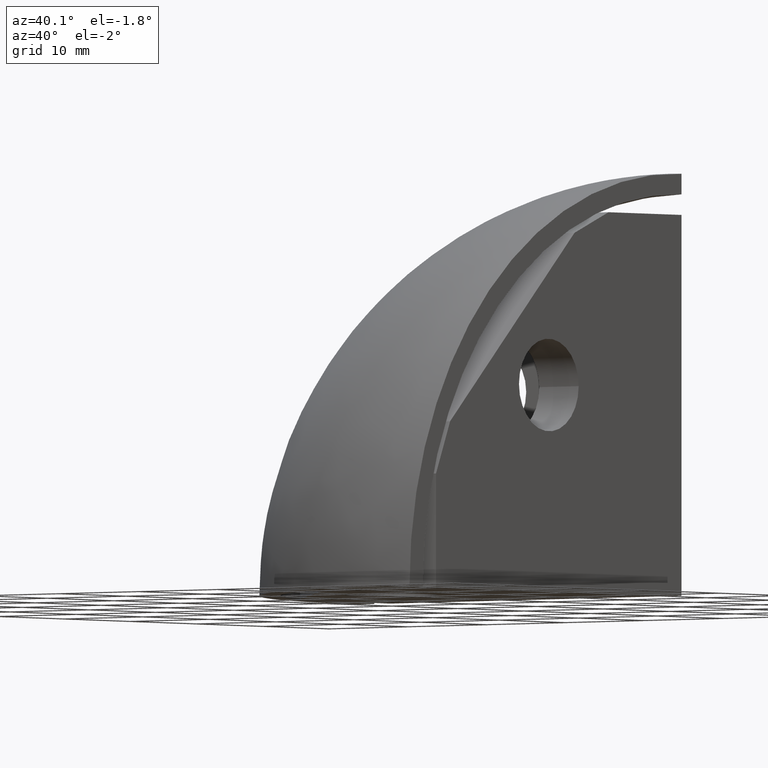
[diagram: clean part render]
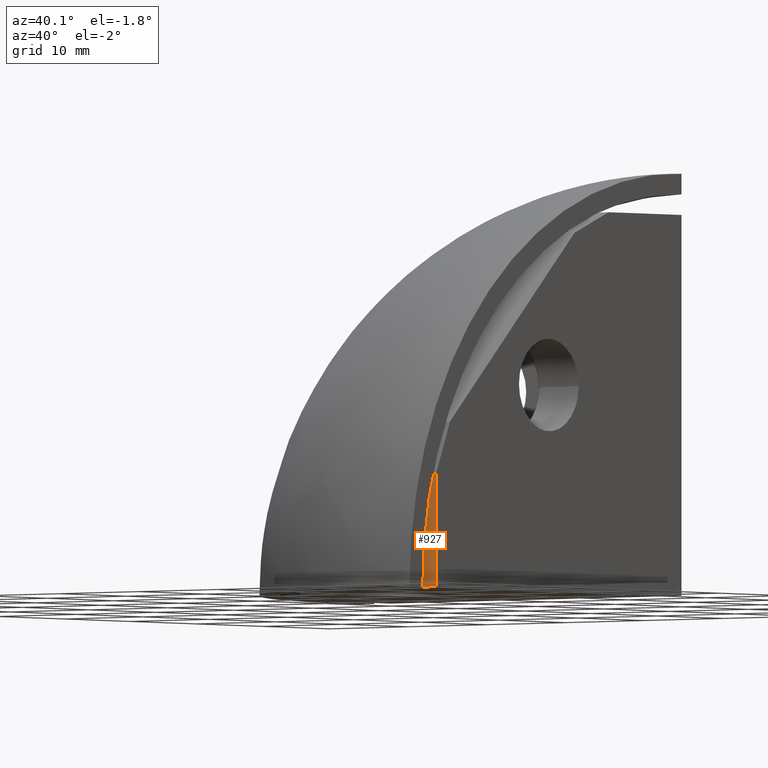
[diagram: same view with one face highlighted and labeled with its STEP entity id]
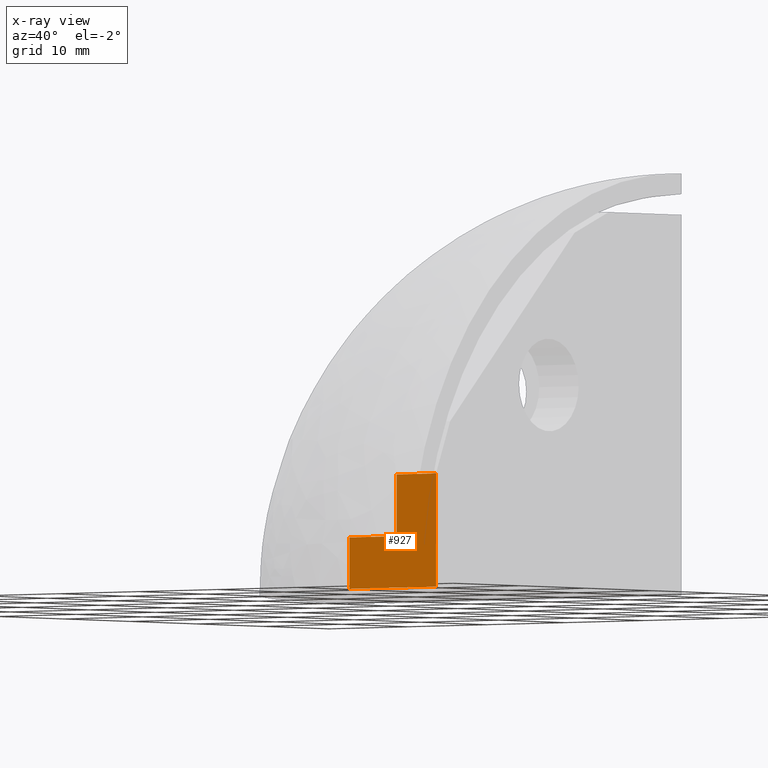
[diagram: x-ray of the same camera — body ghosted, the highlighted face saturated]
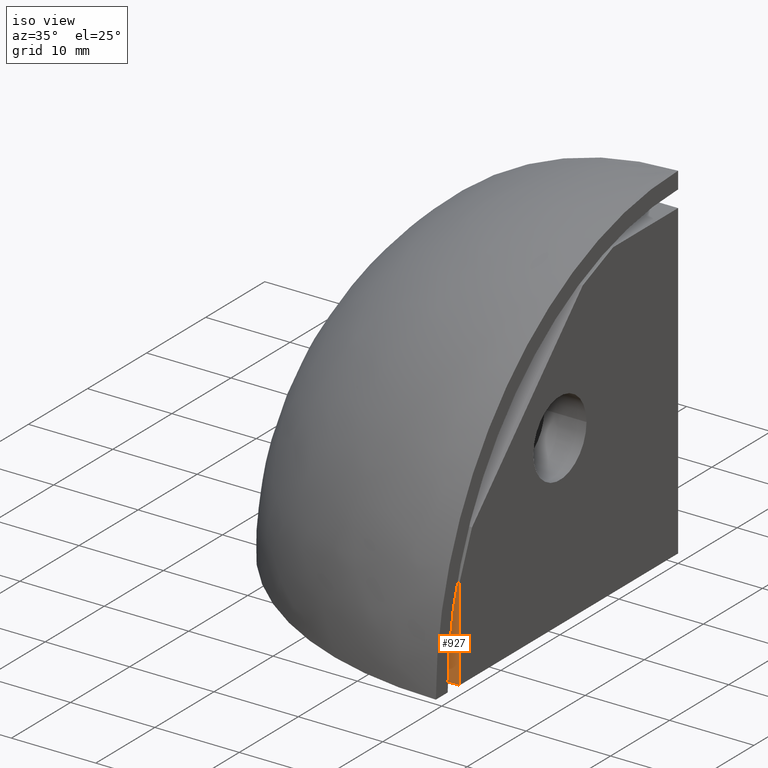
[diagram: same view with one face highlighted and labeled with its STEP entity id]
A machine part, auxiliary view. The second image highlights one B-rep face of the part: STEP entity #927.
The next image is the same camera in x-ray: the body ghosted, the highlighted face saturated — about 0% of this face is hidden behind the body in this view.
A second angle (iso view) of the same face is appended — the face is thin or edge-on in the first view.
In plain terms, the highlighted planar face has unit normal (0, -1, 0).
Its self-contained STEP definition (entity closure, byte-faithful):
#307=CARTESIAN_POINT('',(0.0,-37.0,0.0));
#308=VERTEX_POINT('',#307);
#349=CARTESIAN_POINT('',(0.0,-37.0,10.999999999999998));
#350=VERTEX_POINT('',#349);
#357=CARTESIAN_POINT('',(0.0,-37.0,0.0));
#358=DIRECTION('',(0.0,0.0,1.0));
#359=VECTOR('',#358,10.999999999999998);
#360=LINE('',#357,#359);
#361=EDGE_CURVE('',#308,#350,#360,.T.);
#430=CARTESIAN_POINT('',(-5.0,-37.0,5.0));
#431=VERTEX_POINT('',#430);
#438=CARTESIAN_POINT('',(-5.0,-37.0,11.0));
#439=VERTEX_POINT('',#438);
#440=CARTESIAN_POINT('',(-5.0,-37.0,11.0));
#441=DIRECTION('',(0.0,0.0,-1.0));
#442=VECTOR('',#441,6.0);
#443=LINE('',#440,#442);
#444=EDGE_CURVE('',#439,#431,#443,.T.);
#492=CARTESIAN_POINT('',(-5.0,-37.0,11.0));
#493=DIRECTION('',(1.0,0.0,0.0));
#494=VECTOR('',#493,5.0);
#495=LINE('',#492,#494);
#496=EDGE_CURVE('',#439,#350,#495,.T.);
#548=CARTESIAN_POINT('',(-11.0,-37.0,5.0));
#549=VERTEX_POINT('',#548);
#556=CARTESIAN_POINT('',(-11.0,-37.0,5.0));
#557=DIRECTION('',(1.0,0.0,0.0));
#558=VECTOR('',#557,6.0);
#559=LINE('',#556,#558);
#560=EDGE_CURVE('',#549,#431,#559,.T.);
#588=CARTESIAN_POINT('',(-11.0,-37.0,0.0));
#589=VERTEX_POINT('',#588);
#596=CARTESIAN_POINT('',(-11.0,-37.0,0.0));
#597=DIRECTION('',(0.0,0.0,1.0));
#598=VECTOR('',#597,5.0);
#599=LINE('',#596,#598);
#600=EDGE_CURVE('',#589,#549,#599,.T.);
#619=CARTESIAN_POINT('',(-11.0,-37.0,0.0));
#620=DIRECTION('',(1.0,0.0,0.0));
#621=VECTOR('',#620,11.0);
#622=LINE('',#619,#621);
#623=EDGE_CURVE('',#589,#308,#622,.T.);
#914=CARTESIAN_POINT('',(-37.0,-37.0,0.0));
#915=DIRECTION('',(0.0,-1.0,0.0));
#916=DIRECTION('',(1.0,0.0,0.0));
#917=AXIS2_PLACEMENT_3D('',#914,#915,#916);
#918=PLANE('',#917);
#919=ORIENTED_EDGE('',*,*,#623,.T.);
#920=ORIENTED_EDGE('',*,*,#361,.T.);
#921=ORIENTED_EDGE('',*,*,#496,.F.);
#922=ORIENTED_EDGE('',*,*,#444,.T.);
#923=ORIENTED_EDGE('',*,*,#560,.F.);
#924=ORIENTED_EDGE('',*,*,#600,.F.);
#925=EDGE_LOOP('',(#919,#920,#921,#922,#923,#924));
#926=FACE_OUTER_BOUND('',#925,.T.);
#927=ADVANCED_FACE('',(#926),#918,.T.);